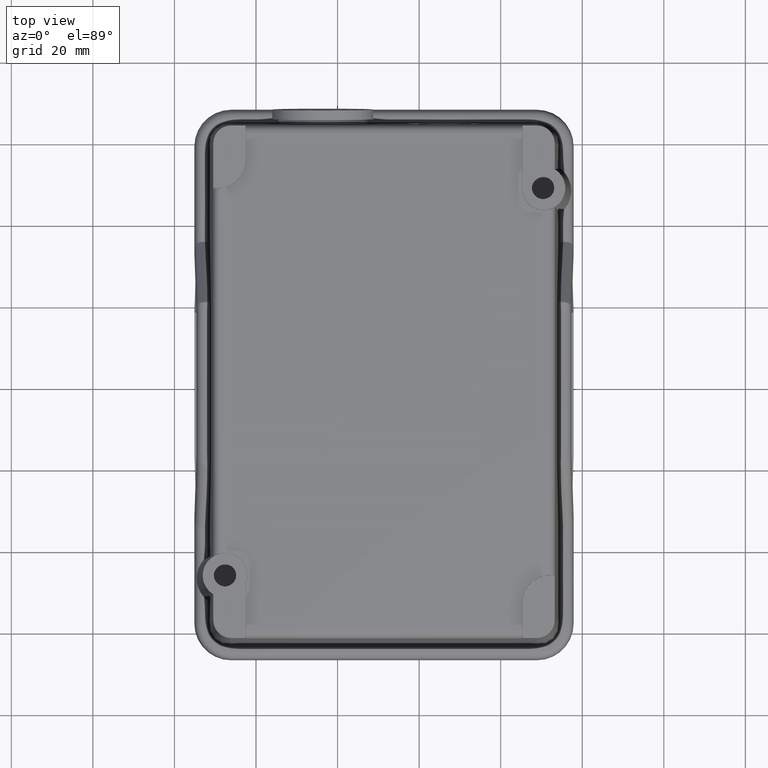
[diagram: clean part render]
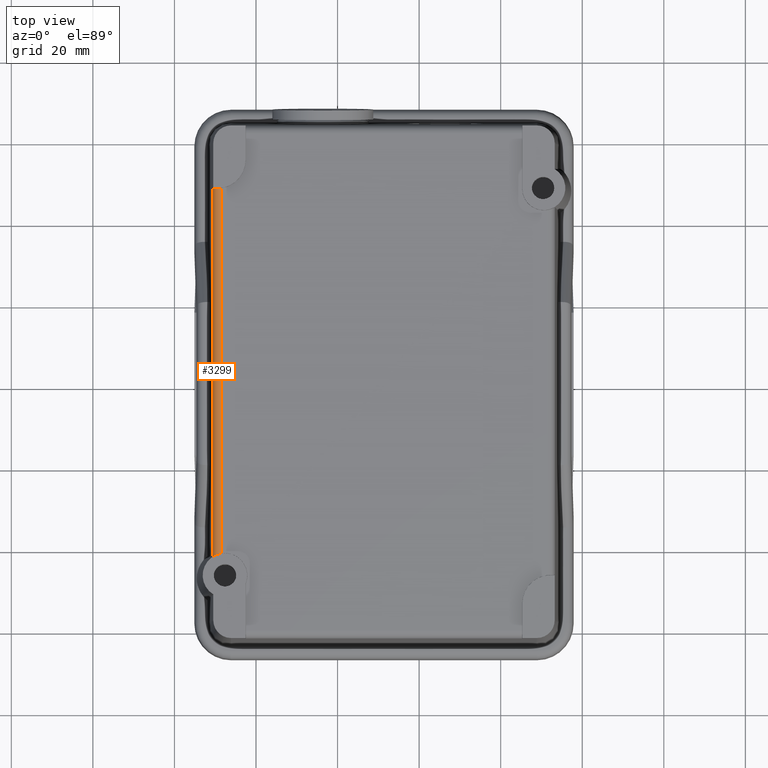
[diagram: same view with one face highlighted and labeled with its STEP entity id]
A machine part, top view. The second image highlights one B-rep face of the part: STEP entity #3299.
In plain terms, the highlighted cylindrical surface (edge-blend (fillet) strip) has radius 2 mm, axis along (-0, -1, 0).
Its self-contained STEP definition (entity closure, byte-faithful):
#3234=CARTESIAN_POINT('',(-8.577175490881061,69.849587009436476,44.0));
#3235=DIRECTION('',(-1.328472E-016,-1.0,0.0));
#3236=DIRECTION('',(-0.694658370458999,0.0,0.719339800338650));
#3237=AXIS2_PLACEMENT_3D('',#3234,#3235,#3236);
#3238=CYLINDRICAL_SURFACE('',#3237,2.0);
#3239=CARTESIAN_POINT('',(-9.508553040495198,87.985196243625069,45.769897132625168));
#3240=VERTEX_POINT('',#3239);
#3241=CARTESIAN_POINT('',(-10.575957144919251,87.925827508392004,44.069798993405001));
#3242=VERTEX_POINT('',#3241);
#3243=CARTESIAN_POINT('',(-8.577175490881059,87.923390073832550,44.0));
#3244=DIRECTION('',(3.944305E-031,0.999390827019095,-0.034899496702509));
#3245=DIRECTION('',(-9.028936E-014,0.034899496702509,0.999390827019095));
#3246=AXIS2_PLACEMENT_3D('',#3243,#3244,#3245);
#3247=ELLIPSE('',#3246,2.001219088597644,2.0);
#3248=EDGE_CURVE('',#3240,#3242,#3247,.F.);
#3249=ORIENTED_EDGE('',*,*,#3248,.T.);
#3250=CARTESIAN_POINT('',(-10.575957144919265,-2.185736012023841,44.069798993405001));
#3251=VERTEX_POINT('',#3250);
#3252=CARTESIAN_POINT('',(-10.575957144919251,87.925827508392004,44.069798993405001));
#3253=DIRECTION('',(0.0,-1.0,0.0));
#3254=VECTOR('',#3253,90.111563520415842);
#3255=LINE('',#3252,#3254);
#3256=EDGE_CURVE('',#3242,#3251,#3255,.T.);
#3257=ORIENTED_EDGE('',*,*,#3256,.T.);
#3258=CARTESIAN_POINT('',(-8.577175490881071,-1.485245207637744,46.000000000000007));
#3259=VERTEX_POINT('',#3258);
#3260=CARTESIAN_POINT('',(-8.577175490881073,-1.485245207637745,46.0));
#3261=CARTESIAN_POINT('',(-8.866534300790461,-1.536663826719229,46.0));
#3262=CARTESIAN_POINT('',(-9.170754777495572,-1.615001239048507,45.933055946936342));
#3263=CARTESIAN_POINT('',(-9.439959345441853,-1.704799592838306,45.804329243876865));
#3264=CARTESIAN_POINT('',(-9.618049061296928,-1.764204837826086,45.719171320496464));
#3265=CARTESIAN_POINT('',(-9.781439485035413,-1.827950017422495,45.607837507701184));
#3266=CARTESIAN_POINT('',(-9.920792673712008,-1.887188901306106,45.481449582672816));
#3267=CARTESIAN_POINT('',(-10.007519547701333,-1.924056397964295,45.402791679313708));
#3268=CARTESIAN_POINT('',(-10.086275526612100,-1.959613245571254,45.318023843721015));
#3269=CARTESIAN_POINT('',(-10.160056208925552,-1.994128994142917,45.222492794433968));
#3270=CARTESIAN_POINT('',(-10.325406761608075,-2.071482549621423,45.008397298124443));
#3271=CARTESIAN_POINT('',(-10.453307984058538,-2.137886496692368,44.747787533223146));
#3272=CARTESIAN_POINT('',(-10.520037193529349,-2.167655201057081,44.474645556581571));
#3273=CARTESIAN_POINT('',(-10.552858863477828,-2.182297343489172,44.340296957557243));
#3274=CARTESIAN_POINT('',(-10.571290946346027,-2.188315567715259,44.203421437616541));
#3275=CARTESIAN_POINT('',(-10.575957144919261,-2.185736012023870,44.069798993405001));
#3276=B_SPLINE_CURVE_WITH_KNOTS('',3,(#3260,#3261,#3262,#3263,#3264,#3265,#3266,#3267,#3268,#3269,#3270,#3271,#3272,#3273,#3274,#3275),.UNSPECIFIED.,.F.,.U.,(4,3,3,3,3,4),(0.300915068451611,0.388919836476867,0.447138551898653,0.483371143661756,0.564572331903642,0.604512241592894),.UNSPECIFIED.);
#3277=EDGE_CURVE('',#3251,#3259,#3276,.F.);
#3278=ORIENTED_EDGE('',*,*,#3277,.T.);
#3279=CARTESIAN_POINT('',(-8.577175490881059,88.055470024228953,46.000000000000007));
#3280=VERTEX_POINT('',#3279);
#3281=CARTESIAN_POINT('',(-8.577175490881071,-1.485245207637744,46.000000000000007));
#3282=DIRECTION('',(0.0,1.0,0.0));
#3283=VECTOR('',#3282,89.540715231866699);
#3284=LINE('',#3281,#3283);
#3285=EDGE_CURVE('',#3259,#3280,#3284,.T.);
#3286=ORIENTED_EDGE('',*,*,#3285,.T.);
#3287=CARTESIAN_POINT('',(-9.508553040495212,87.985196243625069,45.769897132625154));
#3288=CARTESIAN_POINT('',(-9.336143850539646,87.988364511953620,45.860624466949723));
#3289=CARTESIAN_POINT('',(-9.148829569618005,87.997339806326906,45.926163732859159));
#3290=CARTESIAN_POINT('',(-8.960305929170147,88.013436816147873,45.962959772195141));
#3291=CARTESIAN_POINT('',(-8.831243266615438,88.024456775988071,45.988150219381964));
#3292=CARTESIAN_POINT('',(-8.703480248342604,88.038513919005808,46.0));
#3293=CARTESIAN_POINT('',(-8.577175490881059,88.055470024228953,46.0));
#3294=B_SPLINE_CURVE_WITH_KNOTS('',3,(#3287,#3288,#3289,#3290,#3291,#3292,#3293),.UNSPECIFIED.,.F.,.U.,(4,3,4),(0.822516635181780,0.877736275788658,0.915539459649882),.UNSPECIFIED.);
#3295=EDGE_CURVE('',#3280,#3240,#3294,.F.);
#3296=ORIENTED_EDGE('',*,*,#3295,.T.);
#3297=EDGE_LOOP('',(#3249,#3257,#3278,#3286,#3296));
#3298=FACE_OUTER_BOUND('',#3297,.T.);
#3299=ADVANCED_FACE('',(#3298),#3238,.T.);